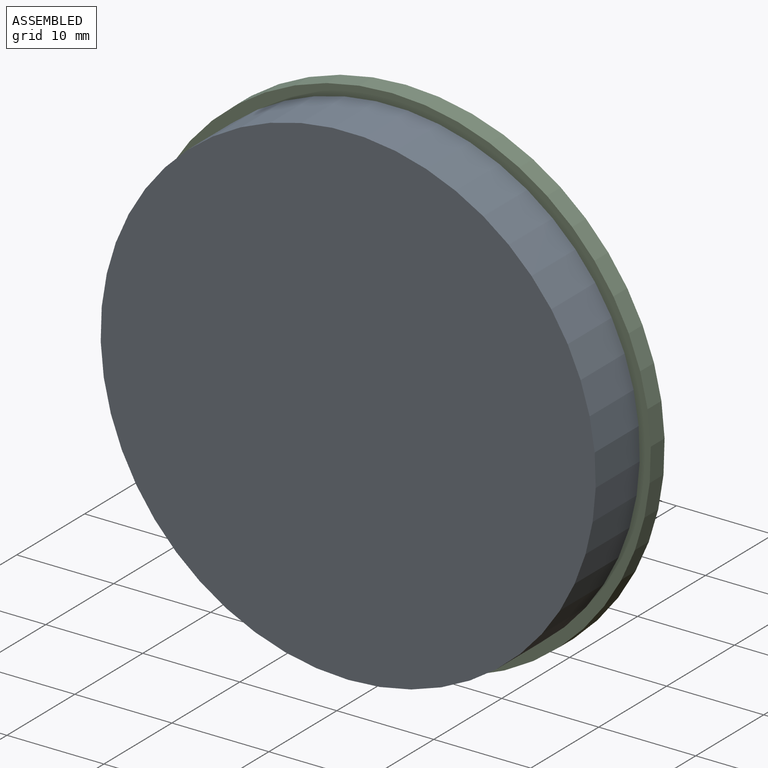
[diagram: assembled view]
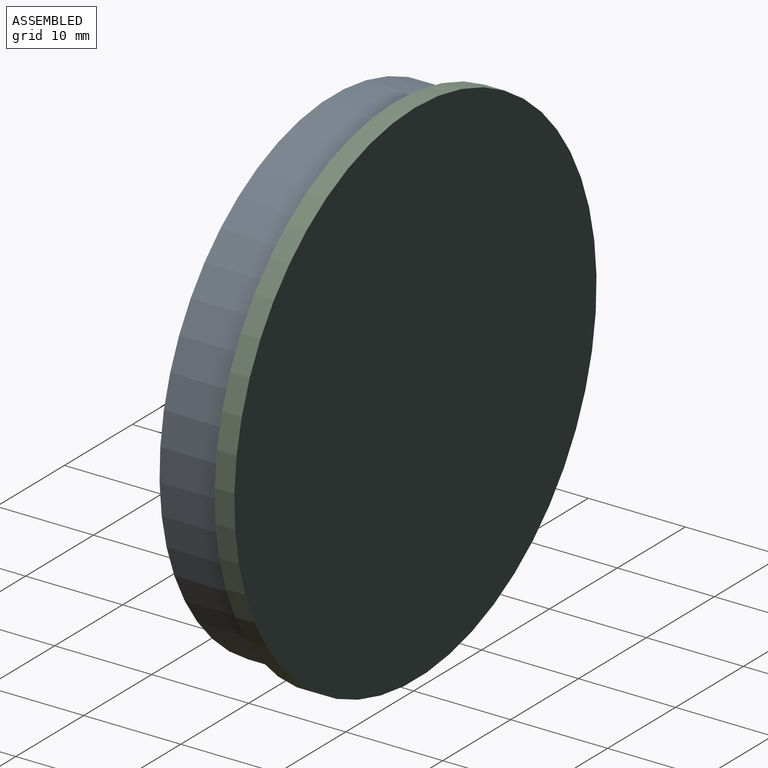
[diagram: assembled view, second angle]
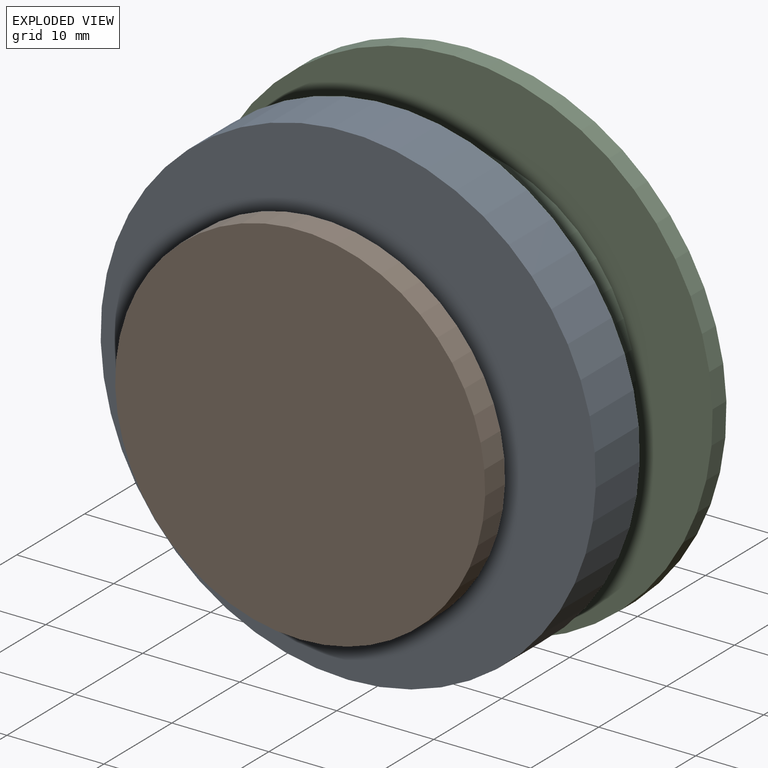
[diagram: exploded view]
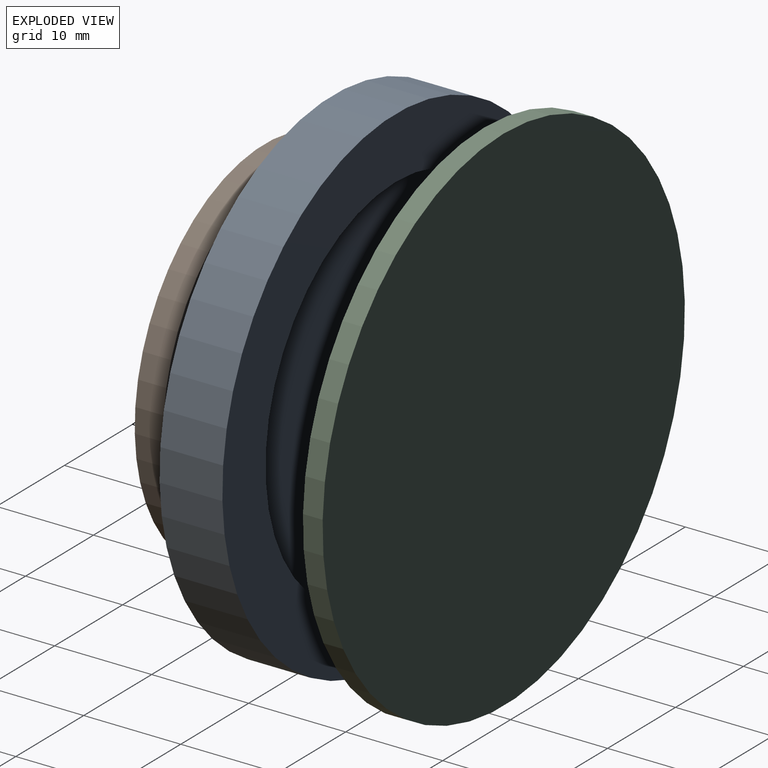
[diagram: exploded view, second angle]
ASSEMBLY  parts=3 mates=2
PART A: 5 faces, bbox 51.1x6.5x51.1 mm
  f0: plane 51.05x51.05mm, normal (0,-1,0), area 2047.1mm2, adj f4
  f1: plane 38.35x38.35mm, normal (0,1,0), area 1155.3mm2, adj f2
  f2: cylinder r=19.18mm len=38.35mm, axis (0,-1,0), area 535.6mm2, adj f1,f3
  f3: plane 51.05x51.05mm, normal (0,1,0), area 891.8mm2, adj f2,f4
  f4: cylinder r=25.53mm len=51.05mm, axis (0,-1,0), area 1038.9mm2, adj f0,f3
PART B: 3 faces, bbox 38.2x2.9x38.2 mm
  f0: cylinder r=19.08mm len=38.15mm, axis (0,1,0), area 350.1mm2, adj f1,f2
  f1: plane 38.15x38.15mm, normal (0,-1,0), area 1143.1mm2, adj f0
  f2: plane 38.15x38.15mm, normal (0,1,0), area 1143.1mm2, adj f0
PART C: 7 faces, bbox 53.3x3.6x53.3 mm
  f0: plane 53.34x53.34mm, normal (0,-1,0), area 2234.6mm2, adj f6
  f1: plane 34.54x34.54mm, normal (0,1,0), area 937.2mm2, adj f2
  f2: cylinder r=17.27mm len=34.54mm, axis (0,-1,0), area 165.4mm2, adj f1,f3
  f3: plane 37.59x37.59mm, normal (0,1,0), area 172.7mm2, adj f2,f4
  f4: cylinder r=18.8mm len=37.59mm, axis (0,-1,0), area 180mm2, adj f3,f5
  f5: plane 53.34x53.34mm, normal (0,1,0), area 1124.7mm2, adj f4,f6
  f6: cylinder r=26.67mm len=53.34mm, axis (0,-1,0), area 340.5mm2, adj f0,f5
PLACE A t=(0,11.68,0)mm
PLACE B t=(0,16.64,0)mm
PLACE C rot(axis=(1,0,0),180deg) t=(0,20.19,0)mm
MATE fastened C.f2 <-> A.f2  axis (0,-1,0) through (0,18.16,0)mm
MATE fastened B.f0 <-> A.f2  axis (0,-1,0) through (0,13.72,0)mm
